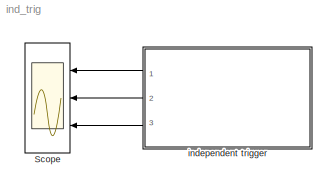
MODEL ind_trig
KIND model
CONFIG AbsTol = auto
CONFIG FixedStep = auto
CONFIG MaxStep = auto
CONFIG MinStep = auto
CONFIG RelTol = 1e-3
CONFIG Solver = ode45
CONFIG SolverMode = Auto
CONFIG StartTime = 0.0
CONFIG StopTime = 10.0
BLOCK [Scope] Scope
  DataFormat = StructureWithTime
  Decimation = 1
  Floating = off
  Grid = on
  LimitDataPoints = off
  MaxDataPoints = 5000
  NumInputPorts = 3
  Ports = [3]
  SampleInput = off
  SampleTime = 0
  SaveName = ScopeData
  SaveToWorkspace = off
  TickLabels = OneTimeTick
  TimeRange = auto
  YMax = 5~5~5
  YMin = -5~-5~-5
  ZoomMode = xonly
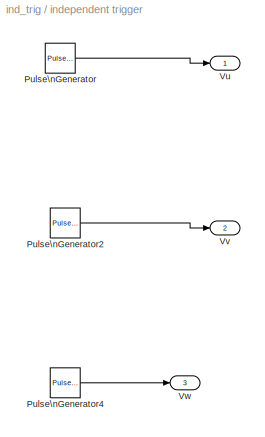
BLOCK [SubSystem] independent trigger
  MaskEnableString = on
  MaskIconFrame = on
  MaskIconOpaque = on
  MaskIconRotate = none
  MaskIconUnits = autoscale
  MaskPromptString = Time period
  MaskStyleString = edit
  MaskToolTipString = on
  MaskTunableValueString = on
  MaskValueString = 1/80
  MaskVariables = T=@1;
  MaskVisibilityString = on
  Ports = [0, 3]
  RTWFcnNameOpts = Auto
  RTWFileNameOpts = Auto
  RTWSystemCode = Auto
  ShowPortLabels = on
  TreatAsAtomicUnit = off
BLOCK [Reference] independent trigger/Pulse\nGenerator  REF=simulink3/Sources/Pulse\nGenerator
  Ports = [0, 1]
  SourceBlock = simulink3/Sources/Pulse\nGenerator
  SourceType = Pulse Generator
  VectorParams1D = on
  amplitude = 1
  duty = 50
  period = T
  start = 0
BLOCK [Reference] independent trigger/Pulse\nGenerator2  REF=simulink3/Sources/Pulse\nGenerator
  Ports = [0, 1]
  SourceBlock = simulink3/Sources/Pulse\nGenerator
  SourceType = Pulse Generator
  VectorParams1D = on
  amplitude = 1
  duty = 50
  period = T
  start = 4*T/12
BLOCK [Reference] independent trigger/Pulse\nGenerator4  REF=simulink3/Sources/Pulse\nGenerator
  Ports = [0, 1]
  SourceBlock = simulink3/Sources/Pulse\nGenerator
  SourceType = Pulse Generator
  VectorParams1D = on
  amplitude = 1
  duty = 50
  period = T
  start = -4*T/12
BLOCK [Outport] independent trigger/Vu
  InitialOutput = []
  OutputWhenDisabled = held
  Port = 1
BLOCK [Outport] independent trigger/Vv
  InitialOutput = []
  OutputWhenDisabled = held
  Port = 2
BLOCK [Outport] independent trigger/Vw
  InitialOutput = []
  OutputWhenDisabled = held
  Port = 3
LINE independent trigger/Pulse\nGenerator2:1 -> independent trigger/Vv:1
LINE independent trigger/Pulse\nGenerator4:1 -> independent trigger/Vw:1
LINE independent trigger/Pulse\nGenerator:1 -> independent trigger/Vu:1
LINE independent trigger:1 -> Scope:1
LINE independent trigger:2 -> Scope:2
LINE independent trigger:3 -> Scope:3
